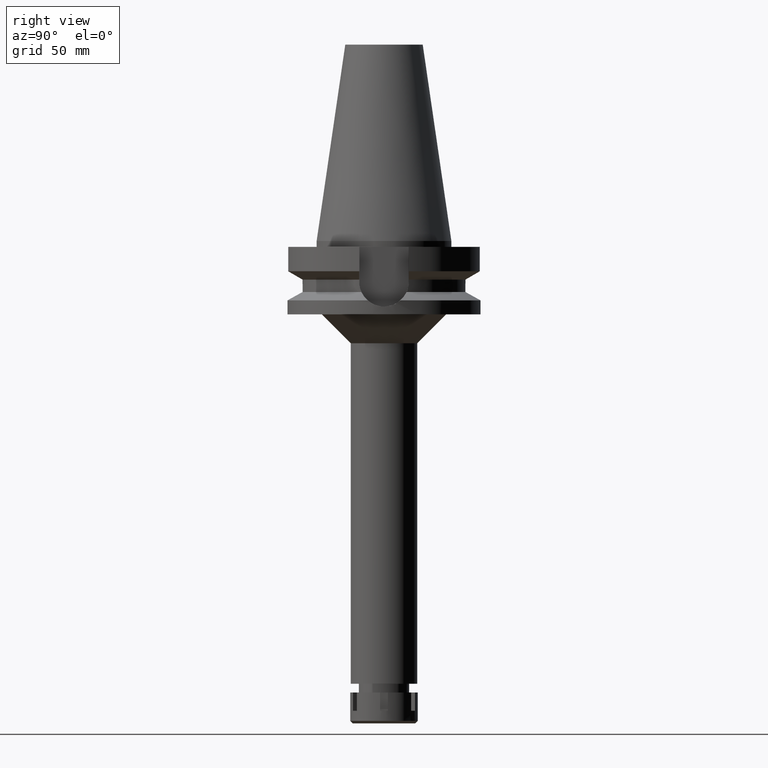
[diagram: clean part render]
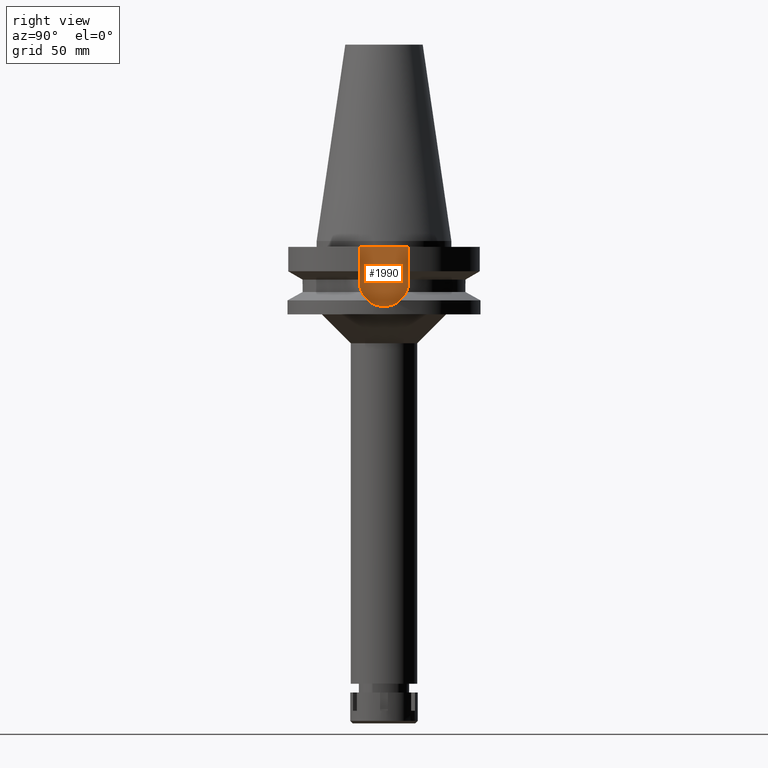
[diagram: same view with one face highlighted and labeled with its STEP entity id]
A machine part, right view. The second image highlights one B-rep face of the part: STEP entity #1990.
In plain terms, the highlighted planar face has unit normal (1, 0, 0).
Its self-contained STEP definition (entity closure, byte-faithful):
#210 = CARTESIAN_POINT ( 'NONE',  ( 35.39999999999999858, 12.84999999999999964, -3.000000000000000000 ) ) ;
#258 = VERTEX_POINT ( 'NONE', #210 ) ;
#315 = LINE ( 'NONE', #1211, #2033 ) ;
#446 = DIRECTION ( 'NONE',  ( 0.0000000000000000000, -1.000000000000000000, 0.0000000000000000000 ) ) ;
#561 = VERTEX_POINT ( 'NONE', #1996 ) ;
#689 = ORIENTED_EDGE ( 'NONE', *, *, #1010, .F. ) ;
#1010 = EDGE_CURVE ( 'NONE', #258, #561, #1457, .T. ) ;
#1211 = CARTESIAN_POINT ( 'NONE',  ( 35.39999999999999858, -12.84999999999999964, -21.14999999999999858 ) ) ;
#1233 = DIRECTION ( 'NONE',  ( 0.0000000000000000000, 1.000000000000000000, 0.0000000000000000000 ) ) ;
#1308 = CARTESIAN_POINT ( 'NONE',  ( 35.39999999999999858, 0.0000000000000000000, -21.14999999999999858 ) ) ;
#1457 = LINE ( 'NONE', #1496, #1475 ) ;
#1475 = VECTOR ( 'NONE', #2013, 1000.000000000000000 ) ;
#1477 = EDGE_CURVE ( 'NONE', #561, #2429, #3385, .T. ) ;
#1496 = CARTESIAN_POINT ( 'NONE',  ( 35.39999999999999858, 12.84999999999999964, -3.000000000000000000 ) ) ;
#1588 = VERTEX_POINT ( 'NONE', #3193 ) ;
#1696 = DIRECTION ( 'NONE',  ( 0.0000000000000000000, 0.0000000000000000000, 1.000000000000000000 ) ) ;
#1819 = AXIS2_PLACEMENT_3D ( 'NONE', #1308, #2949, #1233 ) ;
#1826 = FACE_OUTER_BOUND ( 'NONE', #3283, .T. ) ;
#1880 = AXIS2_PLACEMENT_3D ( 'NONE', #3484, #2648, #2959 ) ;
#1990 = ADVANCED_FACE ( 'NONE', ( #1826 ), #2333, .T. ) ;
#1996 = CARTESIAN_POINT ( 'NONE',  ( 35.39999999999999858, 12.84999999999999964, -21.14999999999999858 ) ) ;
#2013 = DIRECTION ( 'NONE',  ( 0.0000000000000000000, 0.0000000000000000000, -1.000000000000000000 ) ) ;
#2028 = CARTESIAN_POINT ( 'NONE',  ( 35.39999999999999858, -12.84999999999999964, -21.14999999999999858 ) ) ;
#2033 = VECTOR ( 'NONE', #1696, 1000.000000000000000 ) ;
#2088 = VECTOR ( 'NONE', #446, 1000.000000000000000 ) ;
#2333 = PLANE ( 'NONE',  #1880 ) ;
#2415 = LINE ( 'NONE', #2929, #2088 ) ;
#2429 = VERTEX_POINT ( 'NONE', #2028 ) ;
#2648 = DIRECTION ( 'NONE',  ( 1.000000000000000000, 0.0000000000000000000, 0.0000000000000000000 ) ) ;
#2929 = CARTESIAN_POINT ( 'NONE',  ( 35.39999999999999858, 12.84999999999999964, -3.000000000000000000 ) ) ;
#2949 = DIRECTION ( 'NONE',  ( -1.000000000000000000, 0.0000000000000000000, 0.0000000000000000000 ) ) ;
#2959 = DIRECTION ( 'NONE',  ( 0.0000000000000000000, 1.000000000000000000, 0.0000000000000000000 ) ) ;
#2997 = ORIENTED_EDGE ( 'NONE', *, *, #3039, .T. ) ;
#3005 = ORIENTED_EDGE ( 'NONE', *, *, #1477, .F. ) ;
#3039 = EDGE_CURVE ( 'NONE', #258, #1588, #2415, .T. ) ;
#3193 = CARTESIAN_POINT ( 'NONE',  ( 35.39999999999999858, -12.84999999999999964, -3.000000000000000000 ) ) ;
#3283 = EDGE_LOOP ( 'NONE', ( #3506, #3005, #689, #2997 ) ) ;
#3291 = EDGE_CURVE ( 'NONE', #2429, #1588, #315, .T. ) ;
#3385 = CIRCLE ( 'NONE', #1819, 12.84999999999999964 ) ;
#3484 = CARTESIAN_POINT ( 'NONE',  ( 35.39999999999999858, 0.0000000000000000000, 0.0000000000000000000 ) ) ;
#3506 = ORIENTED_EDGE ( 'NONE', *, *, #3291, .F. ) ;